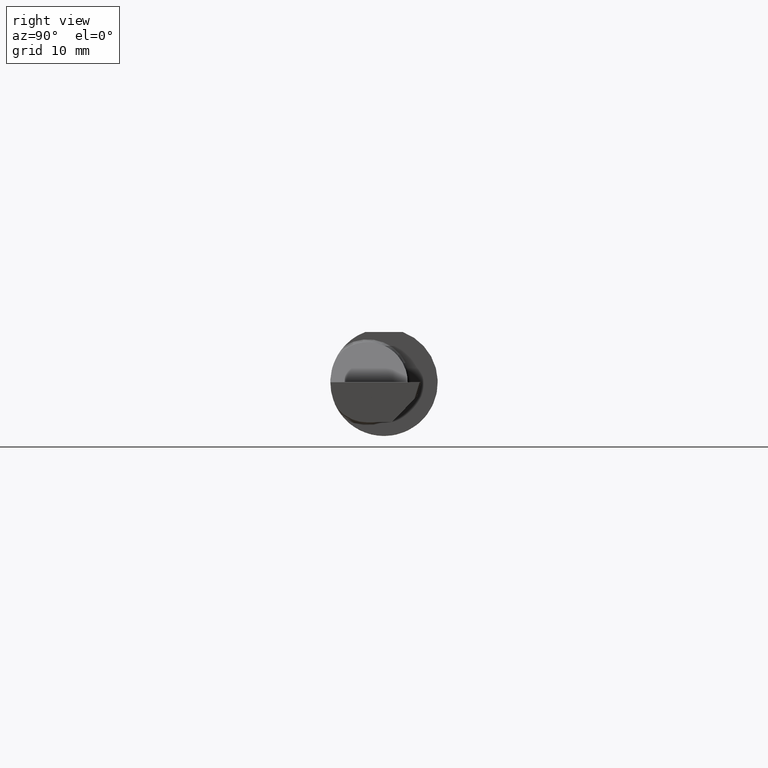
[diagram: clean part render]
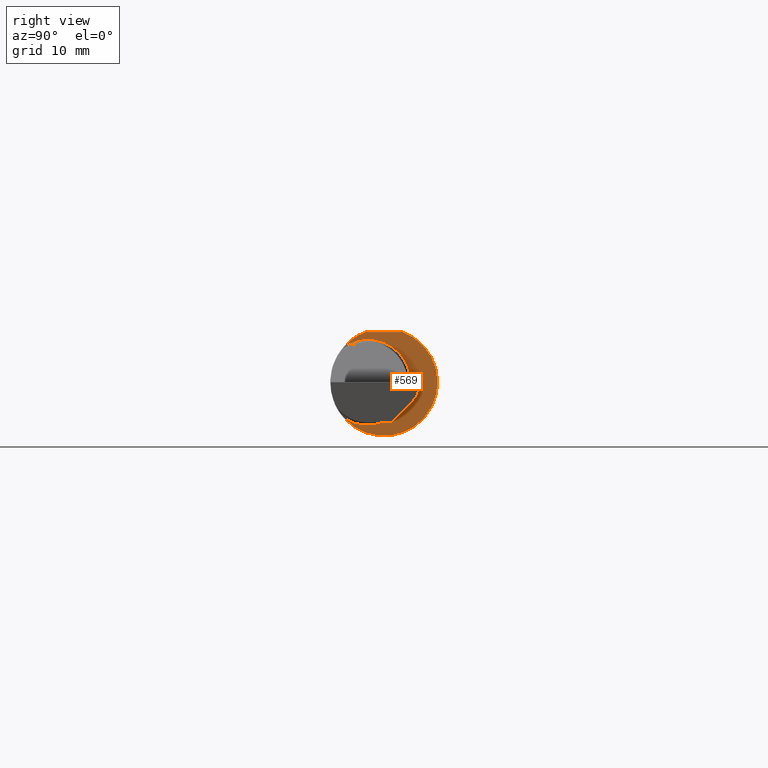
[diagram: same view with one face highlighted and labeled with its STEP entity id]
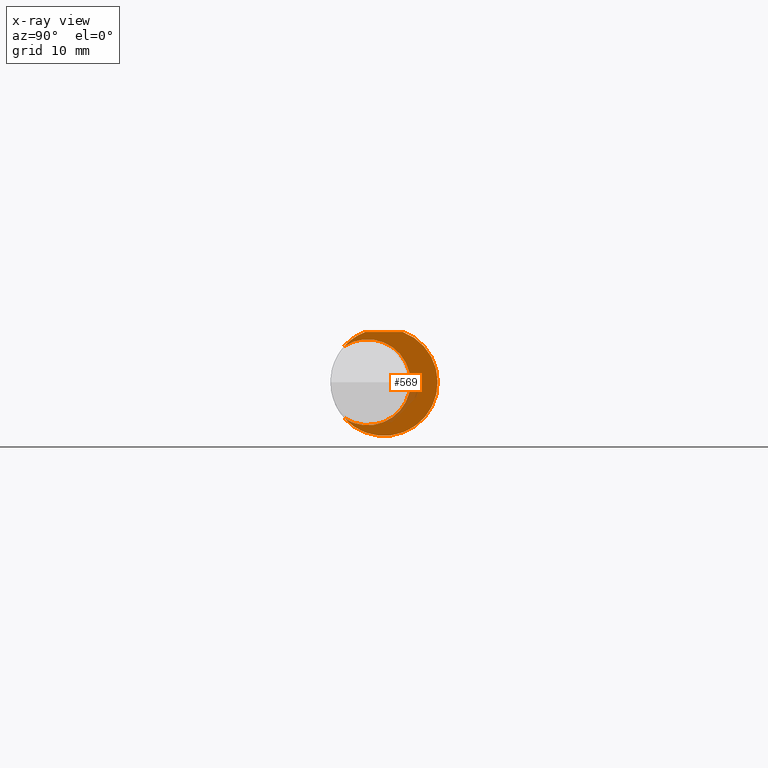
[diagram: x-ray of the same camera — body ghosted, the highlighted face saturated]
A machine part, right view. The second image highlights one B-rep face of the part: STEP entity #569.
The next image is the same camera in x-ray: the body ghosted, the highlighted face saturated — about 8% of this face is hidden behind the body in this view.
In plain terms, the highlighted planar face has unit normal (1, 0, 0).
Its self-contained STEP definition (entity closure, byte-faithful):
#5 = AXIS2_PLACEMENT_3D ( 'NONE', #471, #527, #468 ) ;
#27 = DIRECTION ( 'NONE',  ( 0.000000000000000000, 1.000000000000000000, 0.000000000000000000 ) ) ;
#29 = EDGE_CURVE ( 'NONE', #118, #619, #276, .T. ) ;
#65 = CIRCLE ( 'NONE', #313, 0.1500499999999999889 ) ;
#75 = ORIENTED_EDGE ( 'NONE', *, *, #545, .T. ) ;
#97 = EDGE_CURVE ( 'NONE', #487, #118, #65, .T. ) ;
#100 = DIRECTION ( 'NONE',  ( 0.000000000000000000, -1.000000000000000000, 0.000000000000000000 ) ) ;
#118 = VERTEX_POINT ( 'NONE', #198 ) ;
#120 = CARTESIAN_POINT ( 'NONE',  ( 1.850000000000000311, 0.000000000000000000, 0.000000000000000000 ) ) ;
#132 = CARTESIAN_POINT ( 'NONE',  ( 1.850000000000000311, -0.1383256097560975062, 0.1263568288047932087 ) ) ;
#137 = CARTESIAN_POINT ( 'NONE',  ( 1.850000000000000311, 0.06597272163553663527, 0.1753499999999999781 ) ) ;
#149 = AXIS2_PLACEMENT_3D ( 'NONE', #120, #507, #27 ) ;
#156 = CARTESIAN_POINT ( 'NONE',  ( 1.850000000000000311, 0.2373500000000000332, 0.1753499999999999504 ) ) ;
#157 = ORIENTED_EDGE ( 'NONE', *, *, #690, .T. ) ;
#190 = DIRECTION ( 'NONE',  ( -1.000000000000000000, -6.829619984160658046E-18, -0.000000000000000000 ) ) ;
#198 = CARTESIAN_POINT ( 'NONE',  ( 1.850000000000000311, -0.1383256097560975062, -0.1263568288047932087 ) ) ;
#206 = DIRECTION ( 'NONE',  ( 6.829619984160658046E-18, -1.000000000000000000, 1.438723400918613551E-16 ) ) ;
#275 = LINE ( 'NONE', #156, #481 ) ;
#276 = CIRCLE ( 'NONE', #149, 0.1873499999999999888 ) ;
#313 = AXIS2_PLACEMENT_3D ( 'NONE', #638, #190, #100 ) ;
#319 = VERTEX_POINT ( 'NONE', #484 ) ;
#344 = AXIS2_PLACEMENT_3D ( 'NONE', #639, #466, #479 ) ;
#418 = FACE_OUTER_BOUND ( 'NONE', #439, .T. ) ;
#439 = EDGE_LOOP ( 'NONE', ( #609, #157, #75, #546 ) ) ;
#466 = DIRECTION ( 'NONE',  ( 1.000000000000000000, 6.829619984160658046E-18, 0.000000000000000000 ) ) ;
#468 = DIRECTION ( 'NONE',  ( -6.829619984160658046E-18, 1.000000000000000000, 0.000000000000000000 ) ) ;
#471 = CARTESIAN_POINT ( 'NONE',  ( 1.850000000000000311, 0.09264999999999999625, 0.000000000000000000 ) ) ;
#479 = DIRECTION ( 'NONE',  ( 0.000000000000000000, 1.000000000000000000, 0.000000000000000000 ) ) ;
#481 = VECTOR ( 'NONE', #206, 39.37007874015748143 ) ;
#484 = CARTESIAN_POINT ( 'NONE',  ( 1.850000000000000311, -0.06597272163553659363, 0.1753499999999999781 ) ) ;
#487 = VERTEX_POINT ( 'NONE', #132 ) ;
#507 = DIRECTION ( 'NONE',  ( 1.000000000000000000, 6.829619984160658046E-18, 0.000000000000000000 ) ) ;
#527 = DIRECTION ( 'NONE',  ( 1.000000000000000000, 6.829619984160658046E-18, 0.000000000000000000 ) ) ;
#545 = EDGE_CURVE ( 'NONE', #319, #487, #689, .T. ) ;
#546 = ORIENTED_EDGE ( 'NONE', *, *, #97, .T. ) ;
#569 = ADVANCED_FACE ( 'NONE', ( #418 ), #680, .T. ) ;
#609 = ORIENTED_EDGE ( 'NONE', *, *, #29, .T. ) ;
#619 = VERTEX_POINT ( 'NONE', #137 ) ;
#638 = CARTESIAN_POINT ( 'NONE',  ( 1.850000000000000311, -0.05740000000000000657, 0.000000000000000000 ) ) ;
#639 = CARTESIAN_POINT ( 'NONE',  ( 1.850000000000000311, 0.000000000000000000, 0.000000000000000000 ) ) ;
#680 = PLANE ( 'NONE',  #5 ) ;
#689 = CIRCLE ( 'NONE', #344, 0.1873499999999999888 ) ;
#690 = EDGE_CURVE ( 'NONE', #619, #319, #275, .T. ) ;